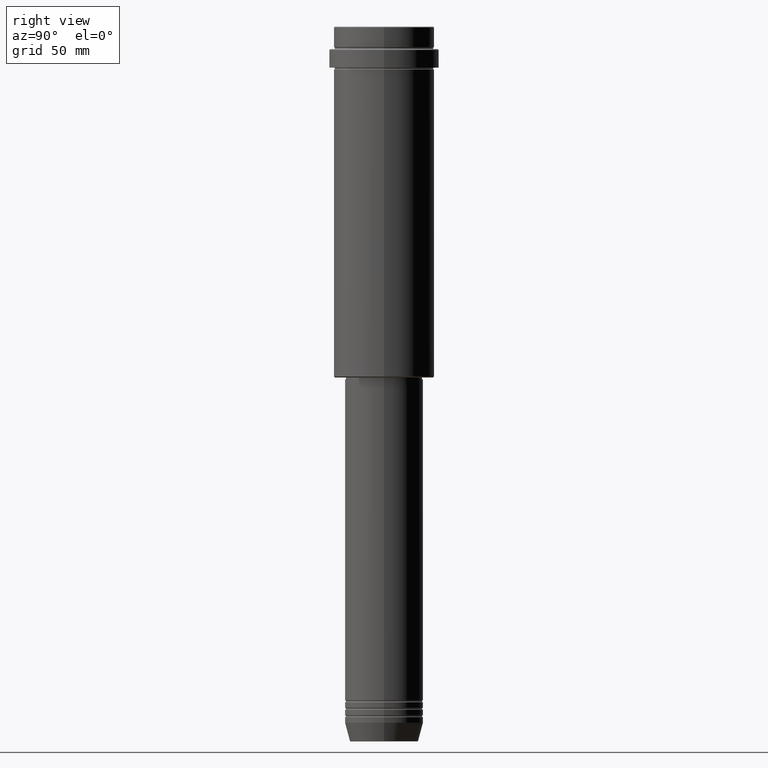
[diagram: clean part render]
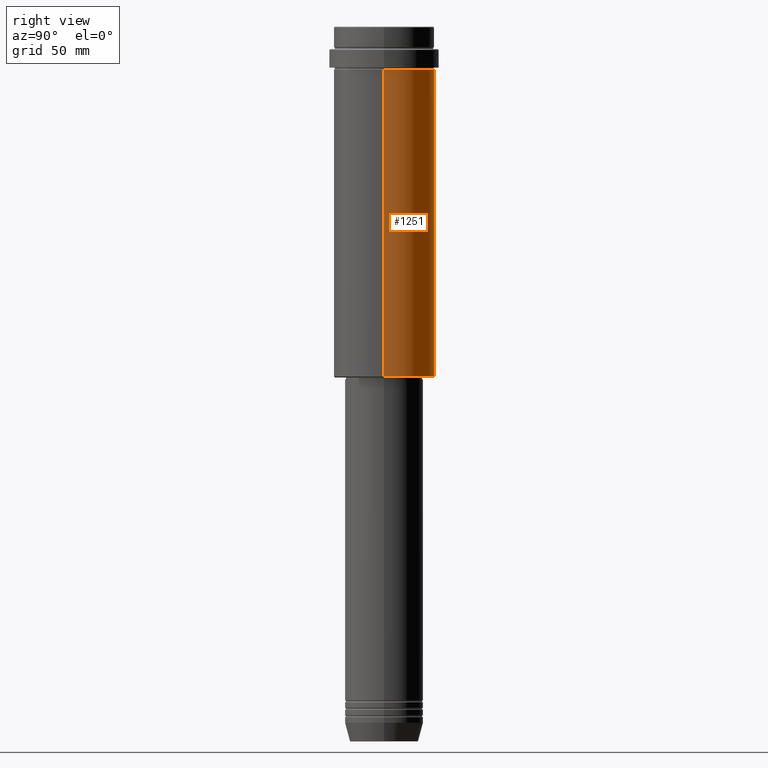
[diagram: same view with one face highlighted and labeled with its STEP entity id]
A machine part, right view. The second image highlights one B-rep face of the part: STEP entity #1251.
In plain terms, the highlighted cylindrical surface (partial cylindrical patch) has radius 27 mm, axis along (-0, -0, 1).
Its self-contained STEP definition (entity closure, byte-faithful):
#2 = FACE_OUTER_BOUND ( 'NONE', #338, .T. ) ;
#22 = EDGE_CURVE ( 'NONE', #1126, #1396, #1321, .T. ) ;
#39 = EDGE_CURVE ( 'NONE', #713, #1126, #892, .T. ) ;
#225 = VECTOR ( 'NONE', #900, 1000.000000000000000 ) ;
#236 = LINE ( 'NONE', #793, #1110 ) ;
#237 = ORIENTED_EDGE ( 'NONE', *, *, #1012, .F. ) ;
#286 = DIRECTION ( 'NONE',  ( 1.000000000000000000, 0.000000000000000000, 0.000000000000000000 ) ) ;
#307 = ORIENTED_EDGE ( 'NONE', *, *, #1205, .F. ) ;
#329 = CARTESIAN_POINT ( 'NONE',  ( 27.00000000000000355, 0.000000000000000000, -23.00000000000001421 ) ) ;
#338 = EDGE_LOOP ( 'NONE', ( #613, #687, #237, #307 ) ) ;
#377 = DIRECTION ( 'NONE',  ( -0.000000000000000000, -0.000000000000000000, 1.000000000000000000 ) ) ;
#417 = CARTESIAN_POINT ( 'NONE',  ( -27.00000000000000355, 3.306546357697854128E-15, -187.5000000000000853 ) ) ;
#454 = CARTESIAN_POINT ( 'NONE',  ( -27.00000000000000355, 3.306546357697854128E-15, 0.000000000000000000 ) ) ;
#613 = ORIENTED_EDGE ( 'NONE', *, *, #39, .T. ) ;
#618 = AXIS2_PLACEMENT_3D ( 'NONE', #714, #377, #286 ) ;
#659 = CARTESIAN_POINT ( 'NONE',  ( 27.00000000000000355, 0.000000000000000000, -187.5000000000000853 ) ) ;
#672 = DIRECTION ( 'NONE',  ( 1.000000000000000000, 0.000000000000000000, 0.000000000000000000 ) ) ;
#679 = CARTESIAN_POINT ( 'NONE',  ( 0.000000000000000000, 0.000000000000000000, -187.5000000000000853 ) ) ;
#687 = ORIENTED_EDGE ( 'NONE', *, *, #22, .T. ) ;
#689 = AXIS2_PLACEMENT_3D ( 'NONE', #1009, #1002, #672 ) ;
#713 = VERTEX_POINT ( 'NONE', #659 ) ;
#714 = CARTESIAN_POINT ( 'NONE',  ( 0.000000000000000000, 0.000000000000000000, -23.00000000000001421 ) ) ;
#746 = DIRECTION ( 'NONE',  ( -1.000000000000000000, 0.000000000000000000, 0.000000000000000000 ) ) ;
#793 = CARTESIAN_POINT ( 'NONE',  ( 27.00000000000000355, 0.000000000000000000, 0.000000000000000000 ) ) ;
#892 = CIRCLE ( 'NONE', #1333, 27.00000000000000355 ) ;
#900 = DIRECTION ( 'NONE',  ( -0.000000000000000000, -0.000000000000000000, 1.000000000000000000 ) ) ;
#993 = CYLINDRICAL_SURFACE ( 'NONE', #689, 27.00000000000000355 ) ;
#1000 = DIRECTION ( 'NONE',  ( -0.000000000000000000, -0.000000000000000000, 1.000000000000000000 ) ) ;
#1002 = DIRECTION ( 'NONE',  ( -0.000000000000000000, -0.000000000000000000, 1.000000000000000000 ) ) ;
#1009 = CARTESIAN_POINT ( 'NONE',  ( 0.000000000000000000, 0.000000000000000000, 0.000000000000000000 ) ) ;
#1012 = EDGE_CURVE ( 'NONE', #1043, #1396, #1044, .T. ) ;
#1043 = VERTEX_POINT ( 'NONE', #329 ) ;
#1044 = CIRCLE ( 'NONE', #618, 27.00000000000000355 ) ;
#1110 = VECTOR ( 'NONE', #1416, 1000.000000000000000 ) ;
#1126 = VERTEX_POINT ( 'NONE', #417 ) ;
#1205 = EDGE_CURVE ( 'NONE', #713, #1043, #236, .T. ) ;
#1251 = ADVANCED_FACE ( 'NONE', ( #2 ), #993, .T. ) ;
#1321 = LINE ( 'NONE', #454, #225 ) ;
#1333 = AXIS2_PLACEMENT_3D ( 'NONE', #679, #1000, #746 ) ;
#1347 = CARTESIAN_POINT ( 'NONE',  ( -27.00000000000000355, 3.306546357697854128E-15, -23.00000000000001421 ) ) ;
#1396 = VERTEX_POINT ( 'NONE', #1347 ) ;
#1416 = DIRECTION ( 'NONE',  ( -0.000000000000000000, -0.000000000000000000, 1.000000000000000000 ) ) ;